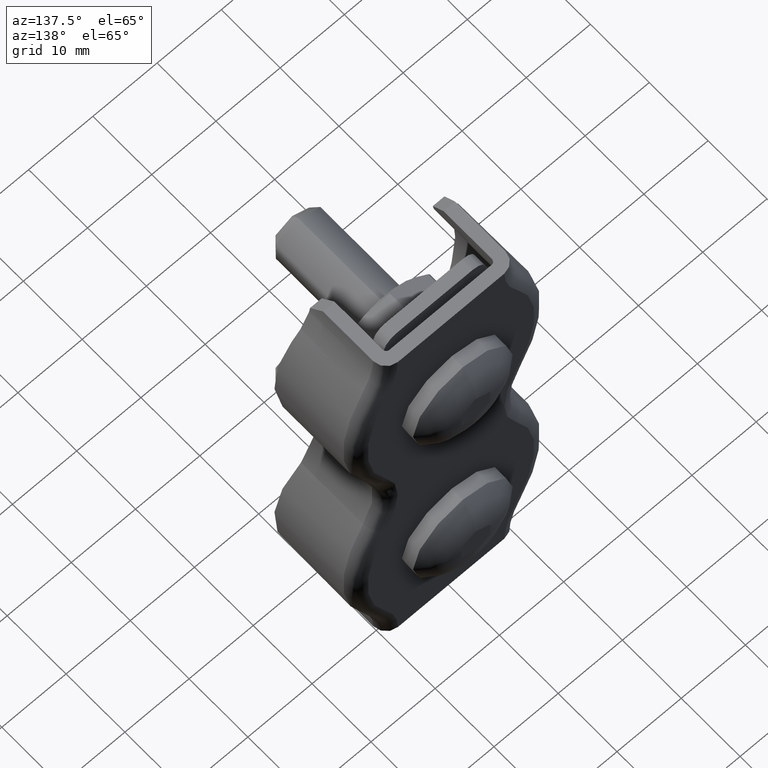
[diagram: clean part render]
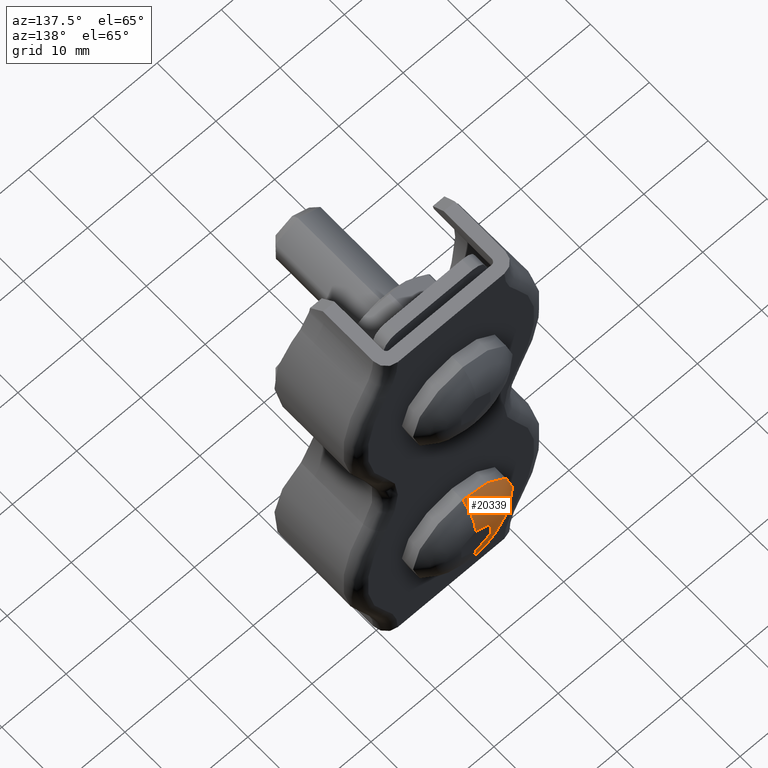
[diagram: same view with one face highlighted and labeled with its STEP entity id]
A machine part, auxiliary view. The second image highlights one B-rep face of the part: STEP entity #20339.
In plain terms, the highlighted toroidal blend (fillet) surface has major radius 2.6 mm and minor (blend) radius 7.1278 mm.
Its self-contained STEP definition (entity closure, byte-faithful):
#99 = AXIS2_PLACEMENT_3D ( 'NONE', #3965, #7657, #19271 ) ;
#733 = CARTESIAN_POINT ( 'NONE',  ( 4.408728476930470856E-15, 3.799999999999998490, -18.00000000000000355 ) ) ;
#1283 = EDGE_CURVE ( 'NONE', #23314, #8882, #19718, .T. ) ;
#1533 = AXIS2_PLACEMENT_3D ( 'NONE', #4866, #3057, #23741 ) ;
#3057 = DIRECTION ( 'NONE',  ( -1.000000000000000000, 0.000000000000000000, 0.000000000000000000 ) ) ;
#3671 = CIRCLE ( 'NONE', #99, 2.599999999999998312 ) ;
#3877 = CARTESIAN_POINT ( 'NONE',  ( 5.042483195489226352E-15, 6.000000000000000000, -15.40000000000000391 ) ) ;
#3917 = AXIS2_PLACEMENT_3D ( 'NONE', #733, #17570, #19645 ) ;
#3965 = CARTESIAN_POINT ( 'NONE',  ( 4.408728476930470856E-15, 6.000000000000000000, -18.00000000000000355 ) ) ;
#4088 = DIRECTION ( 'NONE',  ( -0.000000000000000000, -1.000000000000000000, -0.000000000000000000 ) ) ;
#4580 = CARTESIAN_POINT ( 'NONE',  ( 5.357829746269669831E-15, 3.799999999999998490, -10.24999999999999822 ) ) ;
#4785 = FACE_OUTER_BOUND ( 'NONE', #23541, .T. ) ;
#4866 = CARTESIAN_POINT ( 'NONE',  ( 4.408728476930470856E-15, -1.127840909090916055, -20.60000000000000142 ) ) ;
#7358 = CIRCLE ( 'NONE', #12715, 7.127840909090917165 ) ;
#7359 = ORIENTED_EDGE ( 'NONE', *, *, #7778, .F. ) ;
#7657 = DIRECTION ( 'NONE',  ( -0.000000000000000000, -1.000000000000000000, -0.000000000000000000 ) ) ;
#7658 = ORIENTED_EDGE ( 'NONE', *, *, #1283, .T. ) ;
#7778 = EDGE_CURVE ( 'NONE', #17818, #8882, #20369, .T. ) ;
#8882 = VERTEX_POINT ( 'NONE', #11529 ) ;
#9716 = ORIENTED_EDGE ( 'NONE', *, *, #24069, .F. ) ;
#9786 = TOROIDAL_SURFACE ( 'NONE', #14558, 2.599999999999998312, 7.127840909090917165 ) ;
#10953 = DIRECTION ( 'NONE',  ( 1.000000000000000000, 0.000000000000000000, -1.224646799147353207E-16 ) ) ;
#11529 = CARTESIAN_POINT ( 'NONE',  ( 4.408728476930470856E-15, 3.799999999999998490, -25.75000000000000711 ) ) ;
#12715 = AXIS2_PLACEMENT_3D ( 'NONE', #22195, #10953, #12831 ) ;
#12831 = DIRECTION ( 'NONE',  ( -1.224646799147353700E-16, 0.000000000000000000, -1.000000000000000000 ) ) ;
#14558 = AXIS2_PLACEMENT_3D ( 'NONE', #17410, #4088, #21097 ) ;
#16442 = VERTEX_POINT ( 'NONE', #3877 ) ;
#17270 = EDGE_CURVE ( 'NONE', #16442, #23314, #3671, .T. ) ;
#17410 = CARTESIAN_POINT ( 'NONE',  ( 4.408728476930470856E-15, -1.127840909090916055, -18.00000000000000355 ) ) ;
#17570 = DIRECTION ( 'NONE',  ( -0.000000000000000000, -1.000000000000000000, -0.000000000000000000 ) ) ;
#17818 = VERTEX_POINT ( 'NONE', #4580 ) ;
#18313 = CARTESIAN_POINT ( 'NONE',  ( 4.408728476930470856E-15, 6.000000000000000000, -20.60000000000000142 ) ) ;
#19271 = DIRECTION ( 'NONE',  ( 0.000000000000000000, 0.000000000000000000, -1.000000000000000000 ) ) ;
#19645 = DIRECTION ( 'NONE',  ( 0.000000000000000000, 0.000000000000000000, -1.000000000000000000 ) ) ;
#19718 = CIRCLE ( 'NONE', #1533, 7.127840909090917165 ) ;
#20339 = ADVANCED_FACE ( 'NONE', ( #4785 ), #9786, .T. ) ;
#20369 = CIRCLE ( 'NONE', #3917, 7.750000000000003553 ) ;
#21097 = DIRECTION ( 'NONE',  ( 0.000000000000000000, 0.000000000000000000, -1.000000000000000000 ) ) ;
#22195 = CARTESIAN_POINT ( 'NONE',  ( 4.727136644708782083E-15, -1.127840909090916055, -15.40000000000000391 ) ) ;
#23314 = VERTEX_POINT ( 'NONE', #18313 ) ;
#23541 = EDGE_LOOP ( 'NONE', ( #9716, #24177, #7658, #7359 ) ) ;
#23741 = DIRECTION ( 'NONE',  ( 0.000000000000000000, 0.000000000000000000, 1.000000000000000000 ) ) ;
#24069 = EDGE_CURVE ( 'NONE', #16442, #17818, #7358, .T. ) ;
#24177 = ORIENTED_EDGE ( 'NONE', *, *, #17270, .T. ) ;